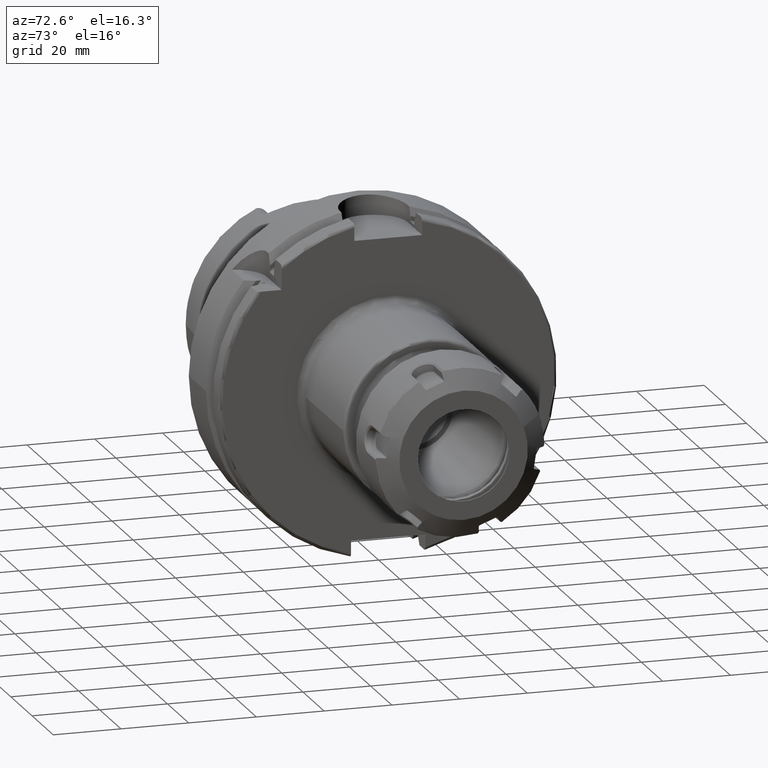
[diagram: clean part render]
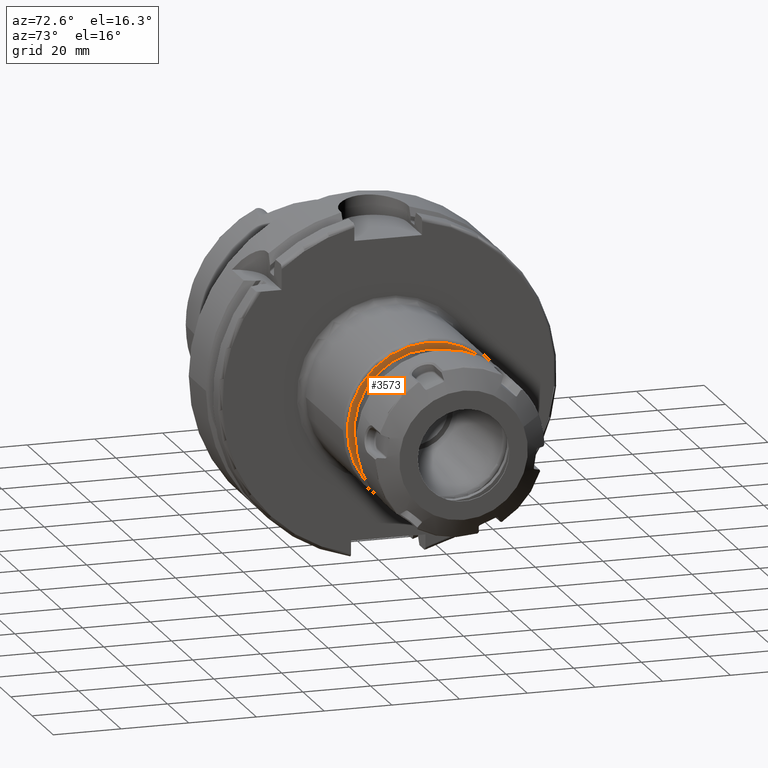
[diagram: same view with one face highlighted and labeled with its STEP entity id]
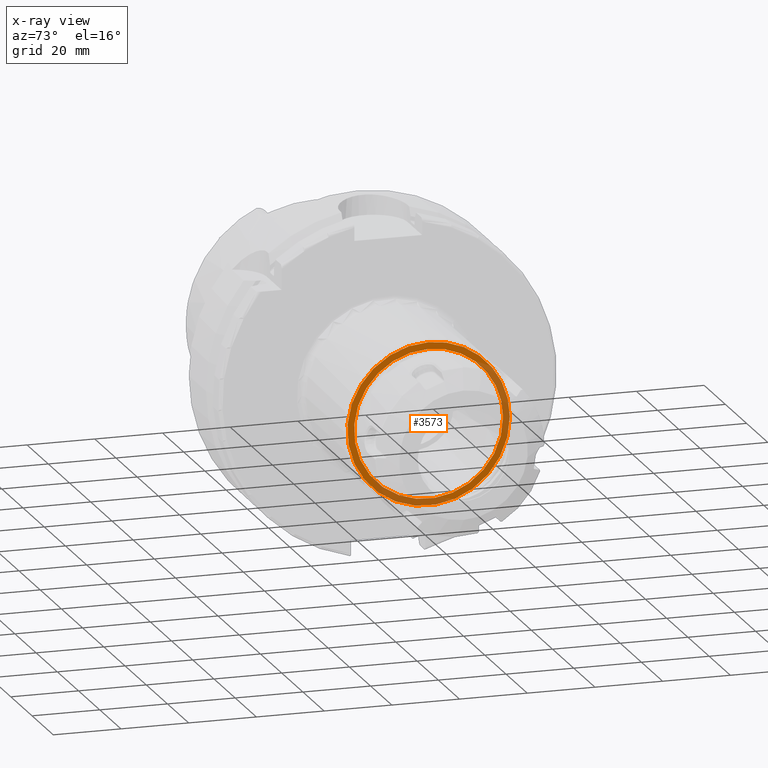
[diagram: x-ray of the same camera — body ghosted, the highlighted face saturated]
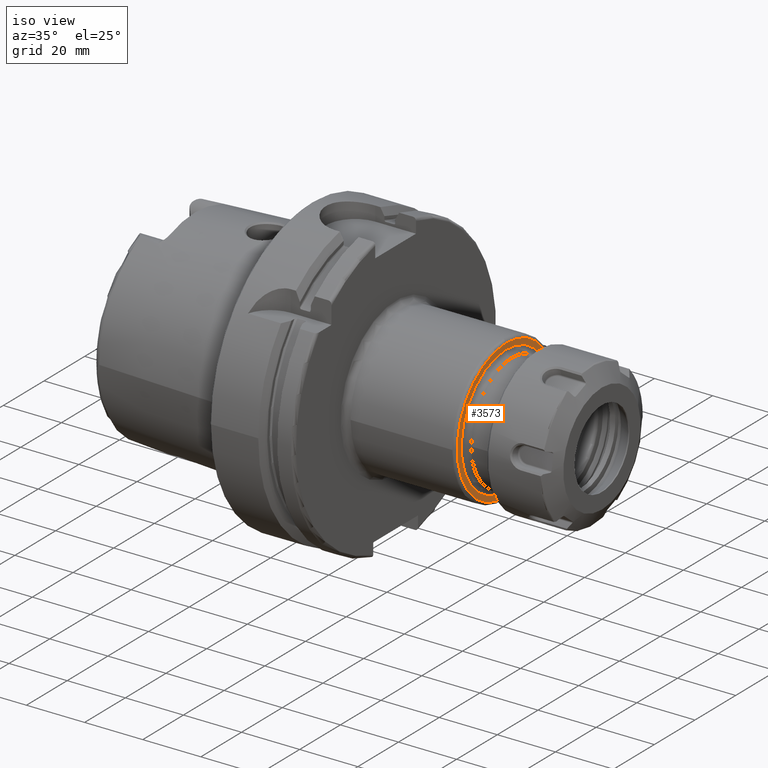
[diagram: same view with one face highlighted and labeled with its STEP entity id]
A machine part, auxiliary view. The second image highlights one B-rep face of the part: STEP entity #3573.
The next image is the same camera in x-ray: the body ghosted, the highlighted face saturated — about 32% of this face is hidden behind the body in this view.
A second angle (iso view) of the same face is appended — the face is thin or edge-on in the first view.
In plain terms, the highlighted planar face has unit normal (1, 0, 0).
Its self-contained STEP definition (entity closure, byte-faithful):
#208=FACE_BOUND('',#557,.T.);
#228=PLANE('',#3865);
#349=FACE_OUTER_BOUND('',#556,.T.);
#556=EDGE_LOOP('',(#2406,#2407));
#557=EDGE_LOOP('',(#2408,#2409));
#1174=CIRCLE('',#3859,22.);
#1179=CIRCLE('',#3864,22.);
#1180=CIRCLE('',#3866,24.);
#1181=CIRCLE('',#3867,24.);
#1424=VERTEX_POINT('',#5447);
#1425=VERTEX_POINT('',#5448);
#1429=VERTEX_POINT('',#5459);
#1430=VERTEX_POINT('',#5460);
#1814=EDGE_CURVE('',#1424,#1425,#1174,.T.);
#1819=EDGE_CURVE('',#1425,#1424,#1179,.T.);
#1820=EDGE_CURVE('',#1429,#1430,#1180,.T.);
#1821=EDGE_CURVE('',#1430,#1429,#1181,.T.);
#2406=ORIENTED_EDGE('',*,*,#1820,.F.);
#2407=ORIENTED_EDGE('',*,*,#1821,.F.);
#2408=ORIENTED_EDGE('',*,*,#1814,.F.);
#2409=ORIENTED_EDGE('',*,*,#1819,.F.);
#3573=ADVANCED_FACE('',(#349,#208),#228,.T.);
#3859=AXIS2_PLACEMENT_3D('',#5449,#4349,#4350);
#3864=AXIS2_PLACEMENT_3D('',#5457,#4359,#4360);
#3865=AXIS2_PLACEMENT_3D('',#5458,#4361,#4362);
#3866=AXIS2_PLACEMENT_3D('',#5461,#4363,#4364);
#3867=AXIS2_PLACEMENT_3D('',#5462,#4365,#4366);
#4349=DIRECTION('center_axis',(1.,0.,0.));
#4350=DIRECTION('ref_axis',(0.,-1.,1.83697019872103E-16));
#4359=DIRECTION('center_axis',(1.,0.,0.));
#4360=DIRECTION('ref_axis',(0.,-1.,1.83697019872103E-16));
#4361=DIRECTION('center_axis',(1.,0.,0.));
#4362=DIRECTION('ref_axis',(0.,0.,-1.));
#4363=DIRECTION('center_axis',(-1.,0.,0.));
#4364=DIRECTION('ref_axis',(0.,-1.,1.83697019872103E-16));
#4365=DIRECTION('center_axis',(-1.,0.,0.));
#4366=DIRECTION('ref_axis',(0.,-1.,1.83697019872103E-16));
#5447=CARTESIAN_POINT('',(67.,22.,-1.34711147906209E-15));
#5448=CARTESIAN_POINT('',(67.,-2.69422295812417E-15,22.));
#5449=CARTESIAN_POINT('Origin',(67.,0.,0.));
#5457=CARTESIAN_POINT('Origin',(67.,0.,0.));
#5458=CARTESIAN_POINT('Origin',(67.,20.,0.));
#5459=CARTESIAN_POINT('',(67.,24.,-7.34788079488412E-15));
#5460=CARTESIAN_POINT('',(67.,-2.93915231795365E-15,24.));
#5461=CARTESIAN_POINT('Origin',(67.,0.,0.));
#5462=CARTESIAN_POINT('Origin',(67.,0.,0.));